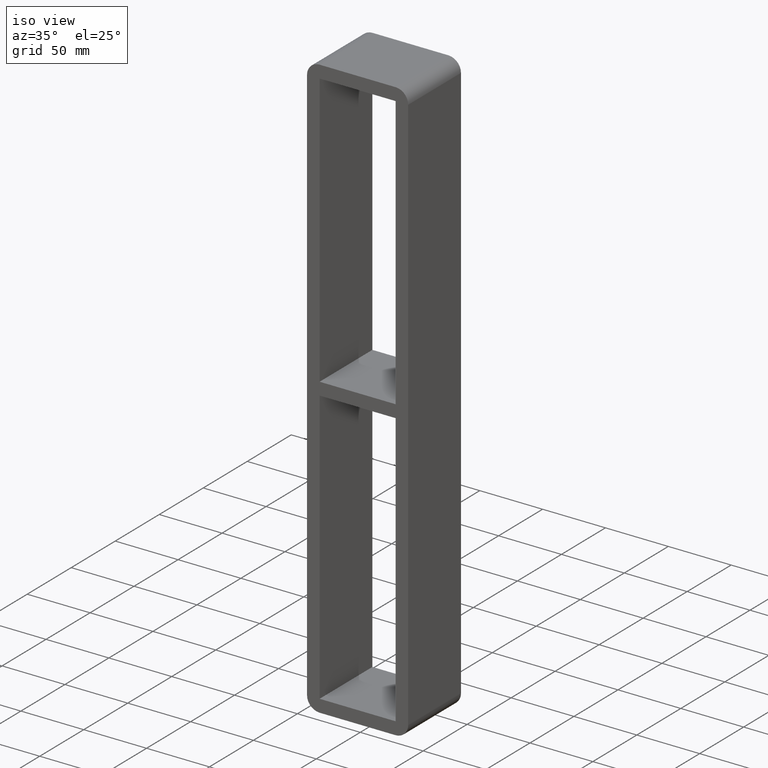
[diagram: clean part render]
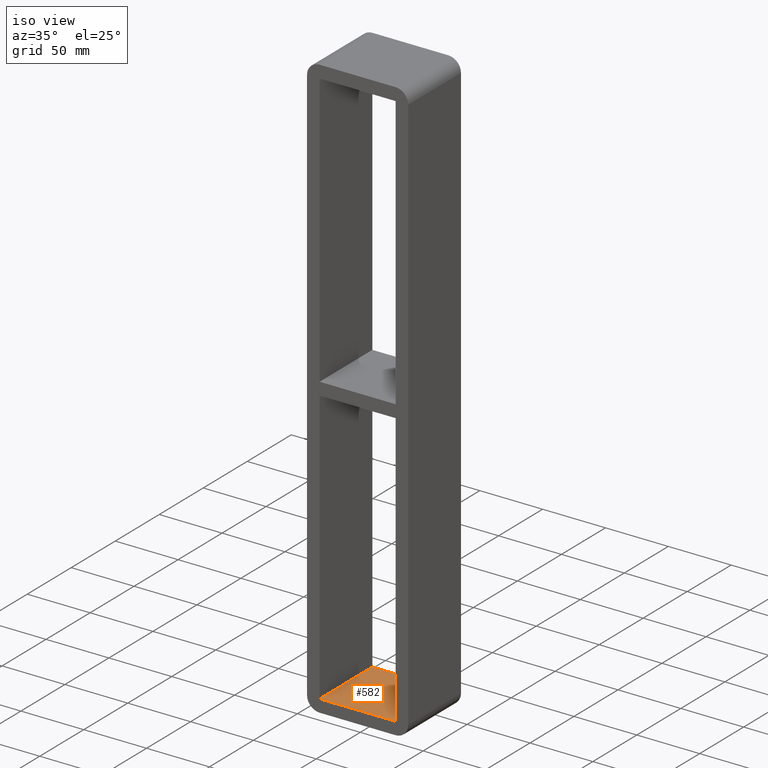
[diagram: same view with one face highlighted and labeled with its STEP entity id]
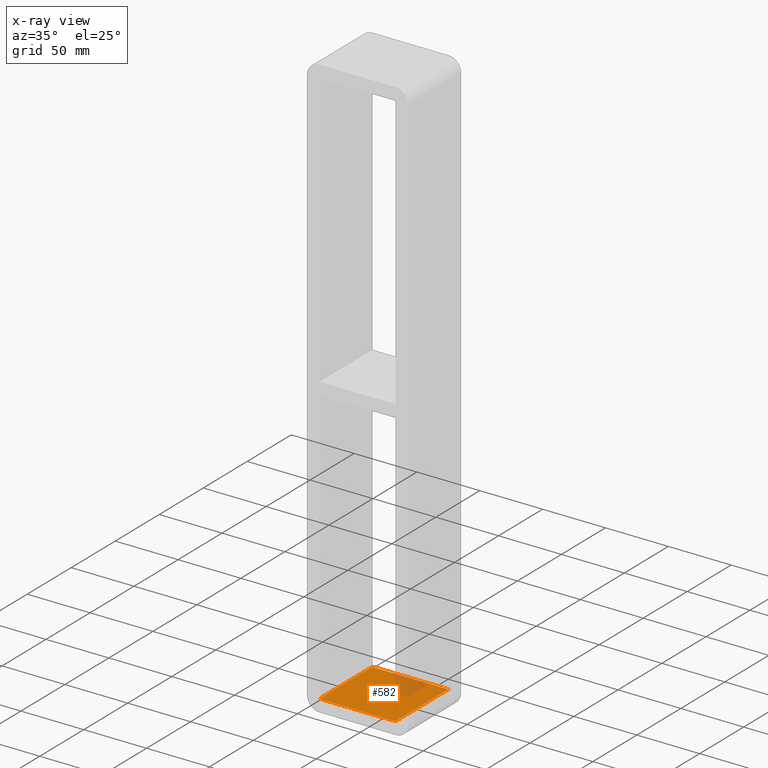
[diagram: x-ray of the same camera — body ghosted, the highlighted face saturated]
A machine part, iso view. The second image highlights one B-rep face of the part: STEP entity #582.
The next image is the same camera in x-ray: the body ghosted, the highlighted face saturated — about 13% of this face is hidden behind the body in this view.
In plain terms, the highlighted planar face has unit normal (0, 0, -1).
Its self-contained STEP definition (entity closure, byte-faithful):
#185=CARTESIAN_POINT('',(30.250000000000004,57.0,-223.00000000000006));
#186=VERTEX_POINT('',#185);
#193=CARTESIAN_POINT('',(30.250000000000004,-3.0,-223.00000000000006));
#194=VERTEX_POINT('',#193);
#195=CARTESIAN_POINT('',(30.250000000000004,57.0,-223.00000000000006));
#196=DIRECTION('',(0.0,-1.0,0.0));
#197=VECTOR('',#196,60.0);
#198=LINE('',#195,#197);
#199=EDGE_CURVE('',#186,#194,#198,.T.);
#361=CARTESIAN_POINT('',(-30.250000000000004,-3.0,-223.00000000000006));
#362=VERTEX_POINT('',#361);
#363=CARTESIAN_POINT('',(30.250000000000004,-3.0,-223.00000000000006));
#364=DIRECTION('',(-1.0,0.0,0.0));
#365=VECTOR('',#364,60.500000000000014);
#366=LINE('',#363,#365);
#367=EDGE_CURVE('',#194,#362,#366,.T.);
#549=CARTESIAN_POINT('',(-30.250000000000004,57.0,-223.00000000000006));
#550=VERTEX_POINT('',#549);
#551=CARTESIAN_POINT('',(-30.250000000000004,-3.0,-223.00000000000006));
#552=DIRECTION('',(0.0,1.0,0.0));
#553=VECTOR('',#552,60.0);
#554=LINE('',#551,#553);
#555=EDGE_CURVE('',#362,#550,#554,.T.);
#566=CARTESIAN_POINT('',(30.250000000000004,0.0,-223.00000000000006));
#567=DIRECTION('',(0.0,0.0,-1.0));
#568=DIRECTION('',(-1.0,0.0,0.0));
#569=AXIS2_PLACEMENT_3D('',#566,#567,#568);
#570=PLANE('',#569);
#571=ORIENTED_EDGE('',*,*,#555,.F.);
#572=ORIENTED_EDGE('',*,*,#367,.F.);
#573=ORIENTED_EDGE('',*,*,#199,.F.);
#574=CARTESIAN_POINT('',(-30.250000000000007,57.0,-223.00000000000006));
#575=DIRECTION('',(1.0,0.0,0.0));
#576=VECTOR('',#575,60.500000000000014);
#577=LINE('',#574,#576);
#578=EDGE_CURVE('',#550,#186,#577,.T.);
#579=ORIENTED_EDGE('',*,*,#578,.F.);
#580=EDGE_LOOP('',(#571,#572,#573,#579));
#581=FACE_OUTER_BOUND('',#580,.T.);
#582=ADVANCED_FACE('',(#581),#570,.F.);